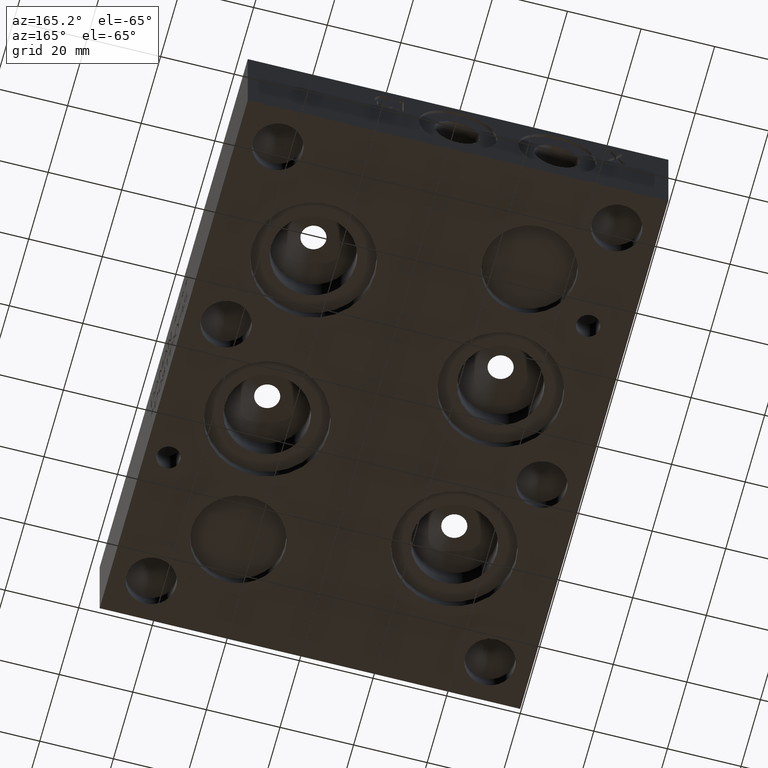
[diagram: clean part render]
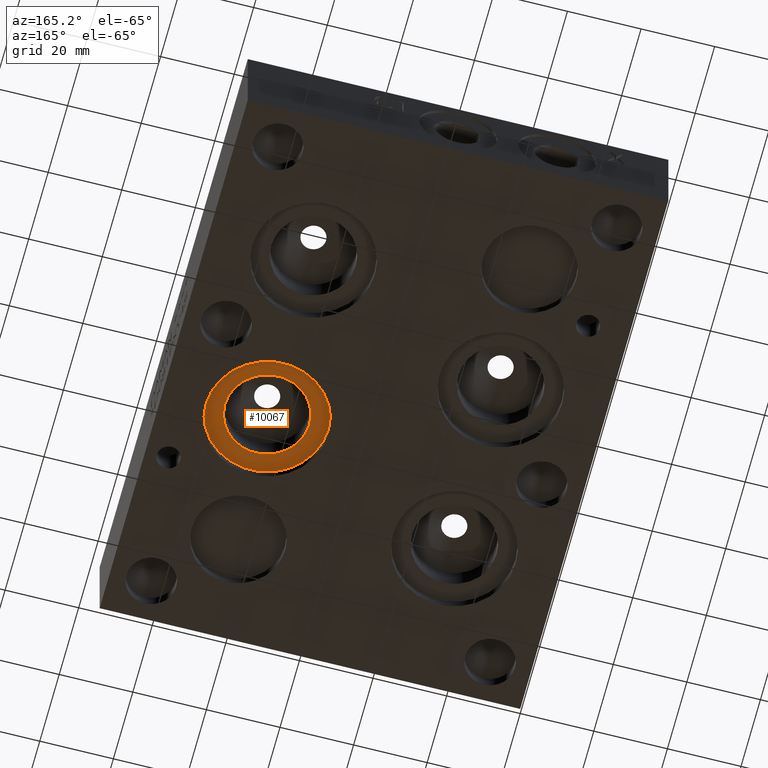
[diagram: same view with one face highlighted and labeled with its STEP entity id]
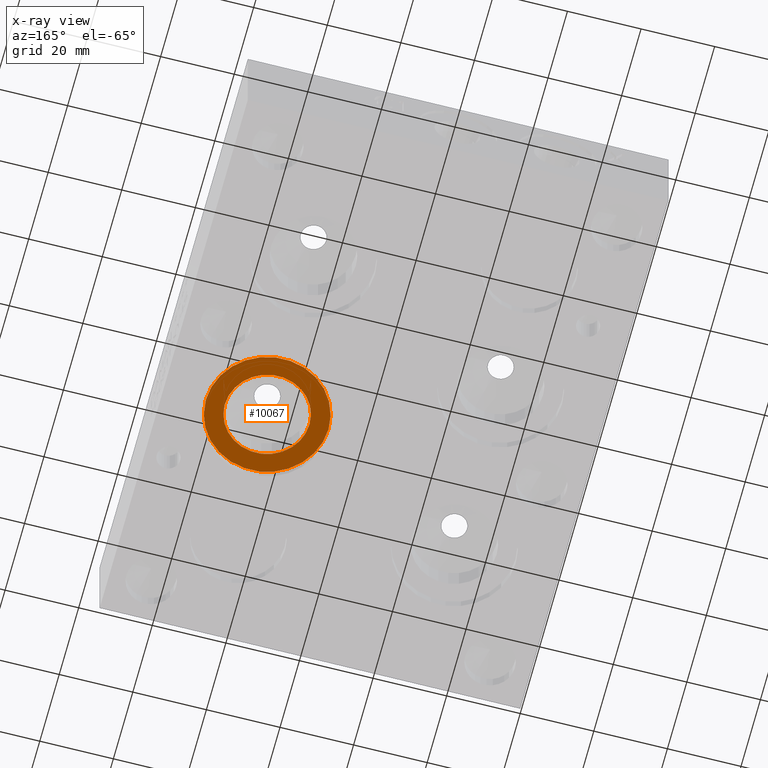
[diagram: x-ray of the same camera — body ghosted, the highlighted face saturated]
A machine part, auxiliary view. The second image highlights one B-rep face of the part: STEP entity #10067.
The next image is the same camera in x-ray: the body ghosted, the highlighted face saturated — about 0% of this face is hidden behind the body in this view.
In plain terms, the highlighted planar face has unit normal (0, 0, -1).
Its self-contained STEP definition (entity closure, byte-faithful):
#152=CIRCLE('',#10565,16.6751);
#153=CIRCLE('',#10566,16.6751);
#154=CIRCLE('',#10567,11.5062);
#349=FACE_BOUND('',#1731,.T.);
#1183=FACE_OUTER_BOUND('',#1730,.T.);
#1730=EDGE_LOOP('',(#8456,#8457));
#1731=EDGE_LOOP('',(#8458));
#4591=VERTEX_POINT('',#16897);
#4592=VERTEX_POINT('',#16898);
#4593=VERTEX_POINT('',#16901);
#5951=EDGE_CURVE('',#4591,#4592,#152,.T.);
#5952=EDGE_CURVE('',#4592,#4591,#153,.T.);
#5953=EDGE_CURVE('',#4593,#4593,#154,.T.);
#8456=ORIENTED_EDGE('',*,*,#5951,.T.);
#8457=ORIENTED_EDGE('',*,*,#5952,.T.);
#8458=ORIENTED_EDGE('',*,*,#5953,.F.);
#9224=PLANE('',#10564);
#10067=ADVANCED_FACE('',(#1183,#349),#9224,.T.);
#10564=AXIS2_PLACEMENT_3D('',#16896,#12486,#12487);
#10565=AXIS2_PLACEMENT_3D('',#16899,#12488,#12489);
#10566=AXIS2_PLACEMENT_3D('',#16900,#12490,#12491);
#10567=AXIS2_PLACEMENT_3D('',#16902,#12492,#12493);
#12486=DIRECTION('center_axis',(0.,0.,-1.));
#12487=DIRECTION('ref_axis',(1.,0.,0.));
#12488=DIRECTION('center_axis',(0.,0.,-1.));
#12489=DIRECTION('ref_axis',(1.,0.,0.));
#12490=DIRECTION('center_axis',(0.,0.,-1.));
#12491=DIRECTION('ref_axis',(1.,0.,0.));
#12492=DIRECTION('center_axis',(0.,0.,-1.));
#12493=DIRECTION('ref_axis',(1.,0.,0.));
#16896=CARTESIAN_POINT('Origin',(85.7504,64.2874,2.794));
#16897=CARTESIAN_POINT('',(102.4255,64.2874,2.794));
#16898=CARTESIAN_POINT('',(69.0753,64.2874,2.794));
#16899=CARTESIAN_POINT('Origin',(85.7504,64.2874,2.794));
#16900=CARTESIAN_POINT('Origin',(85.7504,64.2874,2.794));
#16901=CARTESIAN_POINT('',(74.2442,64.2874,2.794));
#16902=CARTESIAN_POINT('Origin',(85.7504,64.2874,2.794));